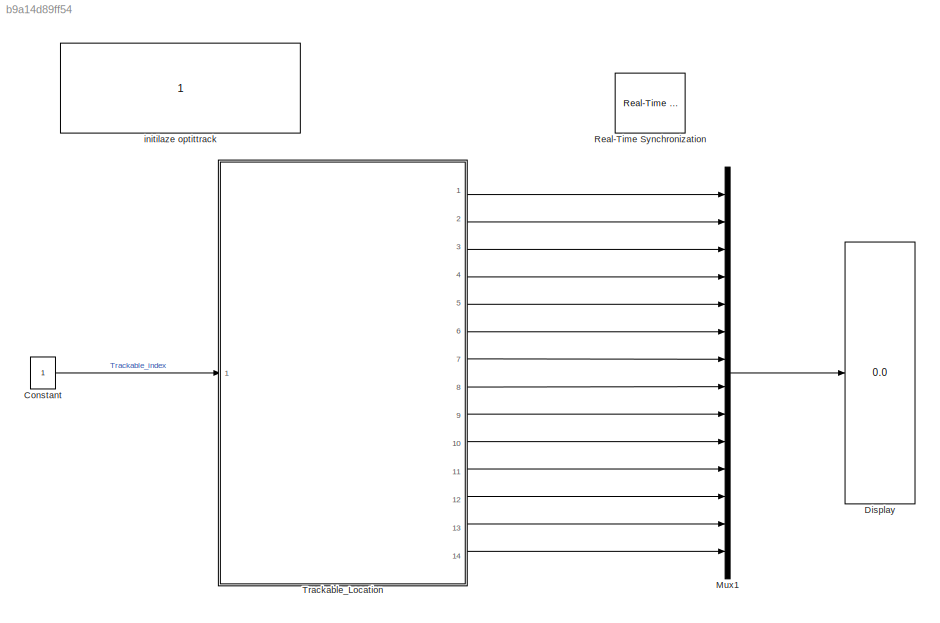
MODEL slx_b9a14d89ff54
KIND model
BLOCK [Constant] Constant
  OutDataTypeStr = Inherit: Inherit via back propagation
BLOCK [Display] Display
  Decimation = 1
  Ports = [1]
BLOCK [Mux] Mux1
  DisplayOption = bar
  Inputs = 14
  Ports = [14, 1]
BLOCK [Reference] Real-Time Synchronization  REF=rtwinlib/Real-Time
Synchronization
  MaxMissedTicks = 200
  Ports = []
  SampleTime = 0.02
  ShowMissedTicks = off
  SourceBlock = rtwinlib/Real-Time\nSynchronization
  SourceType = RTWin Real-Time Synchronization
  YieldWhenWaiting = off
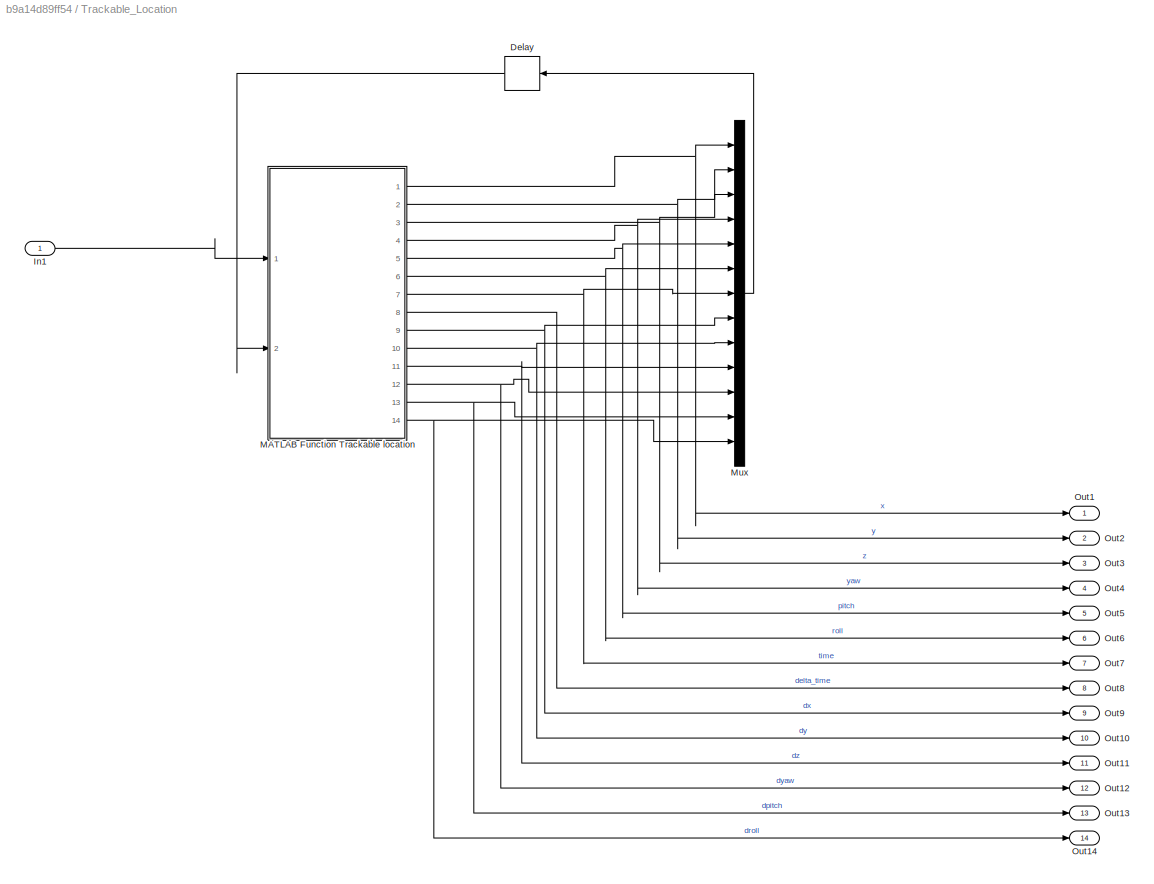
BLOCK [SubSystem] Trackable_Location
  Ports = [1, 14]
  RequestExecContextInheritance = off
BLOCK [Delay] Trackable_Location/Delay
  DelayLength = 1
  InitialCondition = 0
  InputPortMap = u0
  Ports = [1, 1]
BLOCK [Inport] Trackable_Location/In1
  IconDisplay = Port number
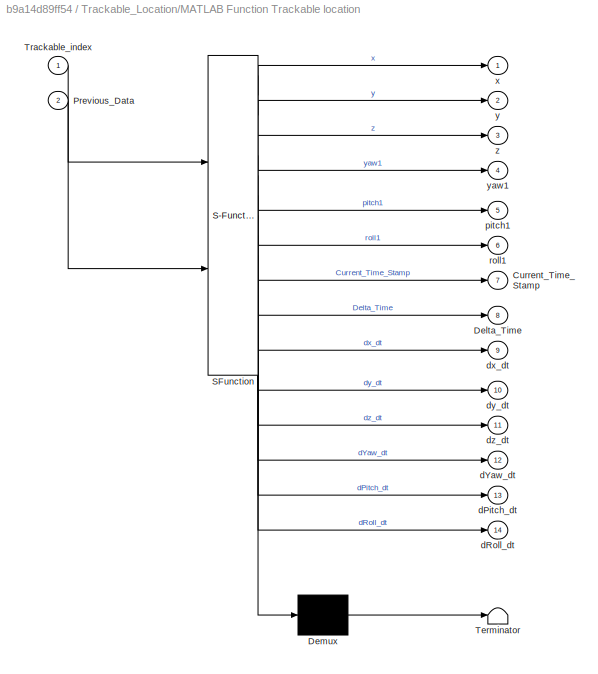
BLOCK [SubSystem] Trackable_Location/MATLAB Function Trackable location
  ErrorFcn = Stateflow.Translate.translate
  PermitHierarchicalResolution = ExplicitOnly
  Ports = [2, 14]
  RequestExecContextInheritance = off
  SFBlockType = MATLAB Function
  TreatAsAtomicUnit = on
BLOCK [Demux] Trackable_Location/MATLAB Function Trackable location/ Demux 
  Outputs = 1
  Ports = [1, 1]
BLOCK [S-Function] Trackable_Location/MATLAB Function Trackable location/ SFunction 
  EnableBusSupport = on
  FunctionName = sf_sfun
  PortCounts = [2 15]
  Ports = [2, 15]
  Tag = Stateflow S-Function Optitrack_Simulink_TrackableLocation 2
BLOCK [Terminator] Trackable_Location/MATLAB Function Trackable location/ Terminator 
BLOCK [Outport] Trackable_Location/MATLAB Function Trackable location/Current_Time_Stamp
  IconDisplay = Port number
  Port = 7
BLOCK [Outport] Trackable_Location/MATLAB Function Trackable location/Delta_Time
  IconDisplay = Port number
  Port = 8
BLOCK [Inport] Trackable_Location/MATLAB Function Trackable location/Previous_Data
  IconDisplay = Port number
  Port = 2
BLOCK [Inport] Trackable_Location/MATLAB Function Trackable location/Trackable_index
  IconDisplay = Port number
BLOCK [Outport] Trackable_Location/MATLAB Function Trackable location/dPitch_dt
  IconDisplay = Port number
  Port = 13
BLOCK [Outport] Trackable_Location/MATLAB Function Trackable location/dRoll_dt
  IconDisplay = Port number
  Port = 14
BLOCK [Outport] Trackable_Location/MATLAB Function Trackable location/dYaw_dt
  IconDisplay = Port number
  Port = 12
BLOCK [Outport] Trackable_Location/MATLAB Function Trackable location/dx_dt
  IconDisplay = Port number
  Port = 9
BLOCK [Outport] Trackable_Location/MATLAB Function Trackable location/dy_dt
  IconDisplay = Port number
  Port = 10
BLOCK [Outport] Trackable_Location/MATLAB Function Trackable location/dz_dt
  IconDisplay = Port number
  Port = 11
BLOCK [Outport] Trackable_Location/MATLAB Function Trackable location/pitch1
  IconDisplay = Port number
  Port = 5
BLOCK [Outport] Trackable_Location/MATLAB Function Trackable location/roll1
  IconDisplay = Port number
  Port = 6
BLOCK [Outport] Trackable_Location/MATLAB Function Trackable location/x
  IconDisplay = Port number
BLOCK [Outport] Trackable_Location/MATLAB Function Trackable location/y
  IconDisplay = Port number
  Port = 2
BLOCK [Outport] Trackable_Location/MATLAB Function Trackable location/yaw1
  IconDisplay = Port number
  Port = 4
BLOCK [Outport] Trackable_Location/MATLAB Function Trackable location/z
  IconDisplay = Port number
  Port = 3
BLOCK [Mux] Trackable_Location/Mux
  DisplayOption = bar
  Inputs = 13
  Ports = [13, 1]
BLOCK [Outport] Trackable_Location/Out1
  IconDisplay = Port number
BLOCK [Outport] Trackable_Location/Out10
  IconDisplay = Port number
  Port = 10
BLOCK [Outport] Trackable_Location/Out11
  IconDisplay = Port number
  Port = 11
BLOCK [Outport] Trackable_Location/Out12
  IconDisplay = Port number
  Port = 12
BLOCK [Outport] Trackable_Location/Out13
  IconDisplay = Port number
  Port = 13
BLOCK [Outport] Trackable_Location/Out14
  IconDisplay = Port number
  Port = 14
BLOCK [Outport] Trackable_Location/Out2
  IconDisplay = Port number
  Port = 2
BLOCK [Outport] Trackable_Location/Out3
  IconDisplay = Port number
  Port = 3
BLOCK [Outport] Trackable_Location/Out4
  IconDisplay = Port number
  Port = 4
BLOCK [Outport] Trackable_Location/Out5
  IconDisplay = Port number
  Port = 5
BLOCK [Outport] Trackable_Location/Out6
  IconDisplay = Port number
  Port = 6
BLOCK [Outport] Trackable_Location/Out7
  IconDisplay = Port number
  Port = 7
BLOCK [Outport] Trackable_Location/Out8
  IconDisplay = Port number
  Port = 8
BLOCK [Outport] Trackable_Location/Out9
  IconDisplay = Port number
  Port = 9
BLOCK [Constant] initilaze optittrack
  StartFcn = if ~exist('inc_location')\n  inc_location =[pwd '\inc']; % change if necessary\nend\n\nif ~exist('lib_location')\n  lib_location =[pwd '\inc']; % change if necessary\nend\n\n% load the NPTrackingTools library if it is not already loaded\nif ~libisloaded('NPTrackingTools')\n\n    addpath(inc_location); % change if necessary\n    addpath(lib_location); % change if necessary\n\n   [notfound,warnings]=loadlibrary('...<+577ch>
  StopFcn = calllib('NPTrackingTools', 'TT_Shutdown') % exit tracking tools\nunloadlibrary NPTrackingTools
LINE Constant:1 -> Trackable_Location:1
LINE Mux1:1 -> Display:1
LINE Trackable_Location/Delay:1 -> Trackable_Location/MATLAB Function Trackable location:2
LINE Trackable_Location/In1:1 -> Trackable_Location/MATLAB Function Trackable location:1
NET Trackable_Location/MATLAB Function Trackable location:1 -> Trackable_Location/Mux:1, Trackable_Location/Out1:1
NET Trackable_Location/MATLAB Function Trackable location:10 -> Trackable_Location/Mux:9, Trackable_Location/Out10:1
NET Trackable_Location/MATLAB Function Trackable location:11 -> Trackable_Location/Mux:10, Trackable_Location/Out11:1
NET Trackable_Location/MATLAB Function Trackable location:12 -> Trackable_Location/Mux:11, Trackable_Location/Out12:1
NET Trackable_Location/MATLAB Function Trackable location:13 -> Trackable_Location/Mux:12, Trackable_Location/Out13:1
NET Trackable_Location/MATLAB Function Trackable location:14 -> Trackable_Location/Mux:13, Trackable_Location/Out14:1
NET Trackable_Location/MATLAB Function Trackable location:2 -> Trackable_Location/Mux:2, Trackable_Location/Out2:1
NET Trackable_Location/MATLAB Function Trackable location:3 -> Trackable_Location/Mux:3, Trackable_Location/Out3:1
NET Trackable_Location/MATLAB Function Trackable location:4 -> Trackable_Location/Mux:4, Trackable_Location/Out4:1
NET Trackable_Location/MATLAB Function Trackable location:5 -> Trackable_Location/Mux:5, Trackable_Location/Out5:1
NET Trackable_Location/MATLAB Function Trackable location:6 -> Trackable_Location/Mux:6, Trackable_Location/Out6:1
NET Trackable_Location/MATLAB Function Trackable location:7 -> Trackable_Location/Mux:7, Trackable_Location/Out7:1
LINE Trackable_Location/MATLAB Function Trackable location:8 -> Trackable_Location/Out8:1
NET Trackable_Location/MATLAB Function Trackable location:9 -> Trackable_Location/Mux:8, Trackable_Location/Out9:1
LINE Trackable_Location/Mux:1 -> Trackable_Location/Delay:1
LINE Trackable_Location:1 -> Mux1:1
LINE Trackable_Location:10 -> Mux1:10
LINE Trackable_Location:11 -> Mux1:11
LINE Trackable_Location:12 -> Mux1:12
LINE Trackable_Location:13 -> Mux1:13
LINE Trackable_Location:14 -> Mux1:14
LINE Trackable_Location:2 -> Mux1:2
LINE Trackable_Location:3 -> Mux1:3
LINE Trackable_Location:4 -> Mux1:4
LINE Trackable_Location:5 -> Mux1:5
LINE Trackable_Location:6 -> Mux1:6
LINE Trackable_Location:7 -> Mux1:7
LINE Trackable_Location:8 -> Mux1:8
LINE Trackable_Location:9 -> Mux1:9
note: NET lines group one-source signal fan-out (src -> all destinations, sorted); 1:1 wires keep LINE
